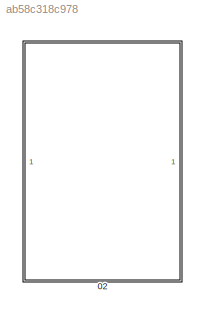
MODEL slx_ab58c318c978
KIND model
CONFIG AbsTol = auto
CONFIG EnableMultiTasking = off
CONFIG FixedStep = auto
CONFIG MaxStep = auto
CONFIG MinStep = auto
CONFIG RelTol = 1e-3
CONFIG SampleTimeConstraint = Unconstrained
CONFIG SolverName = VariableStepAuto
CONFIG StartTime = 0.0
CONFIG StopTime = 1e-2
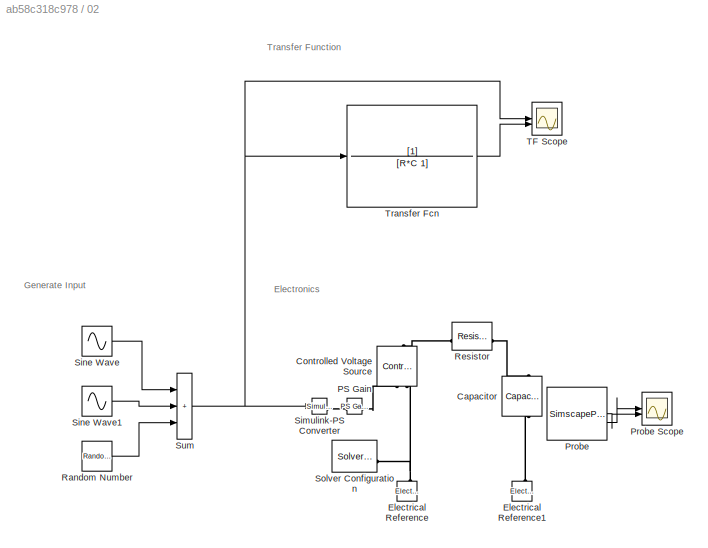
BLOCK [SubSystem] 02
BLOCK [Reference] 02/Capacitor  REF=fl_lib/Electrical/Electrical Elements/Capacitor
  NameLocation = left
  SourceBlock = fl_lib/Electrical/Electrical Elements/Capacitor
  SourceType = Capacitor
BLOCK [Reference] 02/Controlled Voltage Source  REF=fl_lib/Electrical/Electrical Sources/Controlled Voltage
Source
  NameLocation = right
  SourceBlock = fl_lib/Electrical/Electrical Sources/Controlled Voltage\nSource
  SourceType = Controlled Voltage\nSource
BLOCK [Reference] 02/Electrical Reference  REF=fl_lib/Electrical/Electrical Elements/Electrical Reference
  NameLocation = right
  SourceBlock = fl_lib/Electrical/Electrical Elements/Electrical Reference
  SourceType = Electrical Reference
BLOCK [Reference] 02/Electrical Reference1  REF=fl_lib/Electrical/Electrical Elements/Electrical Reference
  NameLocation = right
  SourceBlock = fl_lib/Electrical/Electrical Elements/Electrical Reference
  SourceType = Electrical Reference
BLOCK [Reference] 02/PS Gain  REF=fl_lib/Physical Signals/Functions/PS Gain
  SourceBlock = fl_lib/Physical Signals/Functions/PS Gain
  SourceType = PS Gain
BLOCK [SimscapeProbe] 02/Probe
  BoundBlock = 79
  Variables = {"n.v":{"Unit":"V","PortLabel":"n.v","Probing":"ON"},"p.v":{"Unit":"V","PortLabel":"p.v","Probing":"ON"}}
BLOCK [Scope] 02/Probe Scope
  Floating = off
  NumInputPorts = 2
  ScopeSpecificationString = Simulink.scopes.TimeScopeBlockCfg('CurrentConfiguration', extmgr.ConfigurationSet(extmgr.Configuration('Core','General UI',true),extmgr.Configuration('Core','Source UI',true),extmgr.Configuration('Sources','WiredSimulink',true,'DataLoggingVariableName','ScopeData1'),extmgr.Configuration('Visuals','Time Domain',true,'SerializedDisplays',{struct('MinYLimReal','-7.34559','MaxYLimReal','7.26365','YLab...<+1565ch>
BLOCK [RandomNumber] 02/Random Number
  SampleTime = 1e-6
  Variance = 1e-2
BLOCK [Reference] 02/Resistor  REF=fl_lib/Electrical/Electrical Elements/Resistor
  SourceBlock = fl_lib/Electrical/Electrical Elements/Resistor
  SourceType = Resistor
BLOCK [Reference] 02/Simulink-PS Converter  REF=nesl_utility/Simulink-PS
Converter
  SourceBlock = nesl_utility/Simulink-PS\nConverter
  SourceType = Simulink-PS\nConverter
BLOCK [Sin] 02/Sine Wave
  Amplitude = 5
  Frequency = 2*pi*100
  SampleTime = 0
BLOCK [Sin] 02/Sine Wave1
  Frequency = 2*pi*2000
  SampleTime = 0
BLOCK [Reference] 02/Solver Configuration  REF=nesl_utility/Solver
Configuration
  SourceBlock = nesl_utility/Solver\nConfiguration
  SourceType = Solver\nConfiguration
BLOCK [Sum] 02/Sum
  IconShape = rectangular
  Inputs = +++
BLOCK [Scope] 02/TF Scope
  Floating = off
  NumInputPorts = 2
  ScopeSpecificationString = Simulink.scopes.TimeScopeBlockCfg('CurrentConfiguration', extmgr.ConfigurationSet(extmgr.Configuration('Core','General UI',true),extmgr.Configuration('Core','Source UI',true),extmgr.Configuration('Sources','WiredSimulink',true,'DataLoggingVariableName','ScopeData1'),extmgr.Configuration('Visuals','Time Domain',true,'SerializedDisplays',{struct('MinYLimReal','-7.34559','MaxYLimReal','7.26365','YLab...<+1566ch>
BLOCK [TransferFcn] 02/Transfer Fcn
  Denominator = [R*C 1]
ANNOTATION 02: Electronics
ANNOTATION 02: Generate Input
ANNOTATION 02: Transfer Function
LINE 02/Probe:1 -> 02/Probe Scope:2
LINE 02/Probe:2 -> 02/Probe Scope:1
LINE 02/Random Number:1 -> 02/Sum:3
LINE 02/Sine Wave1:1 -> 02/Sum:2
LINE 02/Sine Wave:1 -> 02/Sum:1
NET 02/Sum:1 -> 02/Simulink-PS Converter:1, 02/TF Scope:1, 02/Transfer Fcn:1
LINE 02/Transfer Fcn:1 -> 02/TF Scope:2
PLINE 02/Capacitor:LConn1 -- 02/Resistor:RConn1
PLINE 02/Capacitor:RConn1 -- 02/Electrical Reference1:LConn1
PLINE 02/Controlled Voltage Source:LConn1 -- 02/Resistor:LConn1
PLINE 02/Controlled Voltage Source:RConn1 -- 02/PS Gain:RConn1
PNET net1: 02/Controlled Voltage Source:RConn2 -- 02/Electrical Reference:LConn1 -- 02/Solver Configuration:RConn1
PLINE 02/PS Gain:LConn1 -- 02/Simulink-PS Converter:RConn1
note: NET lines group one-source signal fan-out (src -> all destinations, sorted); 1:1 wires keep LINE; PNET lines group multi-terminal physical nets as a canonical sorted terminal list (undirected conserving connections); 2-terminal nets keep the pairwise PLINE form
